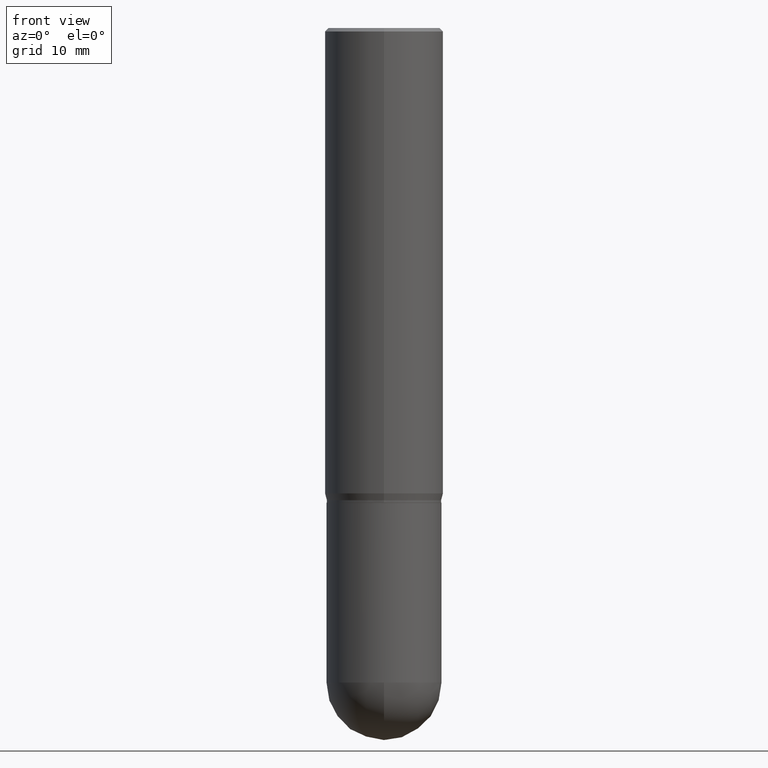
[diagram: clean part render]
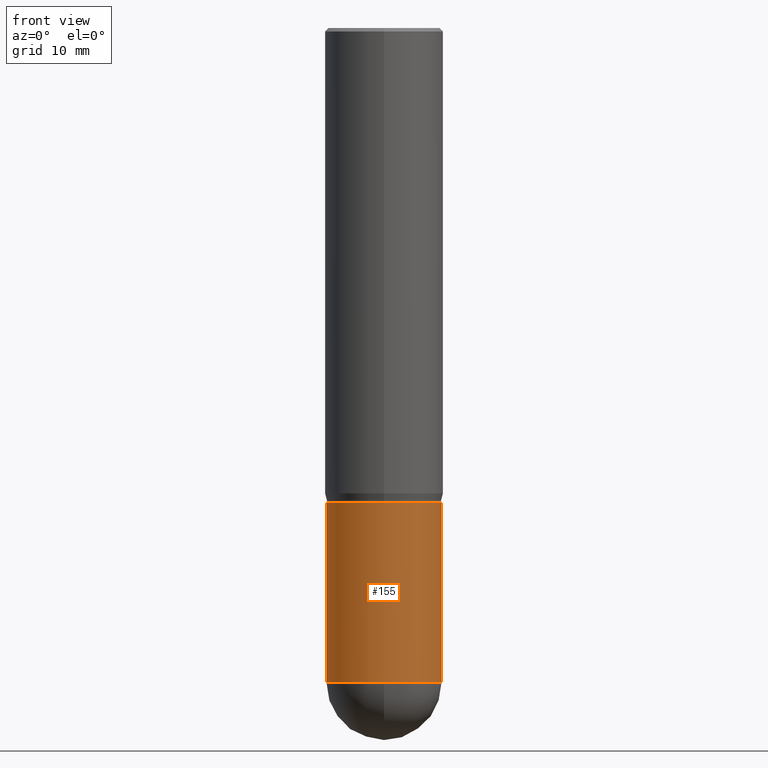
[diagram: same view with one face highlighted and labeled with its STEP entity id]
A machine part, front view. The second image highlights one B-rep face of the part: STEP entity #155.
In plain terms, the highlighted cylindrical surface (partial cylindrical patch) has radius 6.1519 mm, axis along (-0, 0, 1).
Its self-contained STEP definition (entity closure, byte-faithful):
#1 = EDGE_CURVE ( 'NONE', #58, #331, #147, .T. ) ;
#13 = CARTESIAN_POINT ( 'NONE',  ( 0.2422000000000000264, -1.691273560535613991E-15, 1.181010015097775692E-29 ) ) ;
#41 = CARTESIAN_POINT ( 'NONE',  ( 6.744113873697370654E-29, -9.628807236261628470E-15, -2.757800000000000473 ) ) ;
#57 = CARTESIAN_POINT ( 'NONE',  ( 0.000000000000000000, 0.000000000000000000, 0.000000000000000000 ) ) ;
#58 = VERTEX_POINT ( 'NONE', #165 ) ;
#64 = DIRECTION ( 'NONE',  ( 1.000000000000000000, -6.982962677686265922E-15, 0.000000000000000000 ) ) ;
#76 = CARTESIAN_POINT ( 'NONE',  ( -0.2422000000000000264, 1.720934506010962838E-15, -1.191366078859738205E-29 ) ) ;
#80 = DIRECTION ( 'NONE',  ( -2.445468806185136597E-29, 3.491481338843145583E-15, 1.000000000000000000 ) ) ;
#106 = DIRECTION ( 'NONE',  ( -2.445468806185136597E-29, 3.491481338843145583E-15, 1.000000000000000000 ) ) ;
#123 = EDGE_CURVE ( 'NONE', #329, #137, #485, .T. ) ;
#134 = AXIS2_PLACEMENT_3D ( 'NONE', #57, #423, #171 ) ;
#137 = VERTEX_POINT ( 'NONE', #151 ) ;
#147 = LINE ( 'NONE', #76, #211 ) ;
#148 = DIRECTION ( 'NONE',  ( 1.000000000000000000, -6.982962677686265922E-15, 0.000000000000000000 ) ) ;
#151 = CARTESIAN_POINT ( 'NONE',  ( 0.2422000000000000264, -8.674236238221906143E-15, -2.000000000000000444 ) ) ;
#155 = ADVANCED_FACE ( 'NONE', ( #343 ), #429, .T. ) ;
#165 = CARTESIAN_POINT ( 'NONE',  ( -0.2422000000000000264, -6.584950450963000136E-15, -2.757800000000000473 ) ) ;
#168 = DIRECTION ( 'NONE',  ( -2.445468806185136877E-29, 3.491481338843145188E-15, 1.000000000000000000 ) ) ;
#171 = DIRECTION ( 'NONE',  ( 1.000000000000000000, -6.982962677686266711E-15, 4.876176775795935232E-29 ) ) ;
#185 = CARTESIAN_POINT ( 'NONE',  ( -1.720934506010895390E-15, -0.2422000000000096576, -2.757799999999999141 ) ) ;
#191 = ORIENTED_EDGE ( 'NONE', *, *, #359, .T. ) ;
#192 = DIRECTION ( 'NONE',  ( 1.000000000000000000, -6.982962677686265922E-15, 0.000000000000000000 ) ) ;
#202 = CARTESIAN_POINT ( 'NONE',  ( -0.2422000000000000264, -6.584950450962997769E-15, -2.000000000000000444 ) ) ;
#209 = EDGE_CURVE ( 'NONE', #331, #137, #266, .T. ) ;
#211 = VECTOR ( 'NONE', #273, 39.37007874015748143 ) ;
#222 = EDGE_LOOP ( 'NONE', ( #377, #253, #191, #291, #301 ) ) ;
#226 = VERTEX_POINT ( 'NONE', #185 ) ;
#236 = CARTESIAN_POINT ( 'NONE',  ( 0.2422000000000000264, -9.997158517509574401E-15, -2.757800000000000473 ) ) ;
#253 = ORIENTED_EDGE ( 'NONE', *, *, #397, .T. ) ;
#254 = AXIS2_PLACEMENT_3D ( 'NONE', #388, #262, #148 ) ;
#262 = DIRECTION ( 'NONE',  ( -2.445468806185136597E-29, 3.491481338843145583E-15, 1.000000000000000000 ) ) ;
#266 = CIRCLE ( 'NONE', #254, 0.2422000000000000264 ) ;
#273 = DIRECTION ( 'NONE',  ( -2.445468806185136877E-29, 3.491481338843145188E-15, 1.000000000000000000 ) ) ;
#291 = ORIENTED_EDGE ( 'NONE', *, *, #123, .T. ) ;
#301 = ORIENTED_EDGE ( 'NONE', *, *, #209, .F. ) ;
#329 = VERTEX_POINT ( 'NONE', #236 ) ;
#331 = VERTEX_POINT ( 'NONE', #202 ) ;
#343 = FACE_OUTER_BOUND ( 'NONE', #222, .T. ) ;
#359 = EDGE_CURVE ( 'NONE', #226, #329, #507, .T. ) ;
#377 = ORIENTED_EDGE ( 'NONE', *, *, #1, .F. ) ;
#388 = CARTESIAN_POINT ( 'NONE',  ( 4.890937612370273754E-29, -6.982962677686291954E-15, -2.000000000000000444 ) ) ;
#397 = EDGE_CURVE ( 'NONE', #58, #226, #459, .T. ) ;
#408 = AXIS2_PLACEMENT_3D ( 'NONE', #41, #80, #192 ) ;
#423 = DIRECTION ( 'NONE',  ( -2.445468806185136597E-29, 3.491481338843145583E-15, 1.000000000000000000 ) ) ;
#429 = CYLINDRICAL_SURFACE ( 'NONE', #134, 0.2422000000000000264 ) ;
#444 = AXIS2_PLACEMENT_3D ( 'NONE', #500, #106, #64 ) ;
#447 = VECTOR ( 'NONE', #168, 39.37007874015748143 ) ;
#459 = CIRCLE ( 'NONE', #444, 0.2422000000000000264 ) ;
#485 = LINE ( 'NONE', #13, #447 ) ;
#500 = CARTESIAN_POINT ( 'NONE',  ( 6.744113873697370654E-29, -9.628807236261628470E-15, -2.757800000000000473 ) ) ;
#507 = CIRCLE ( 'NONE', #408, 0.2422000000000000264 ) ;